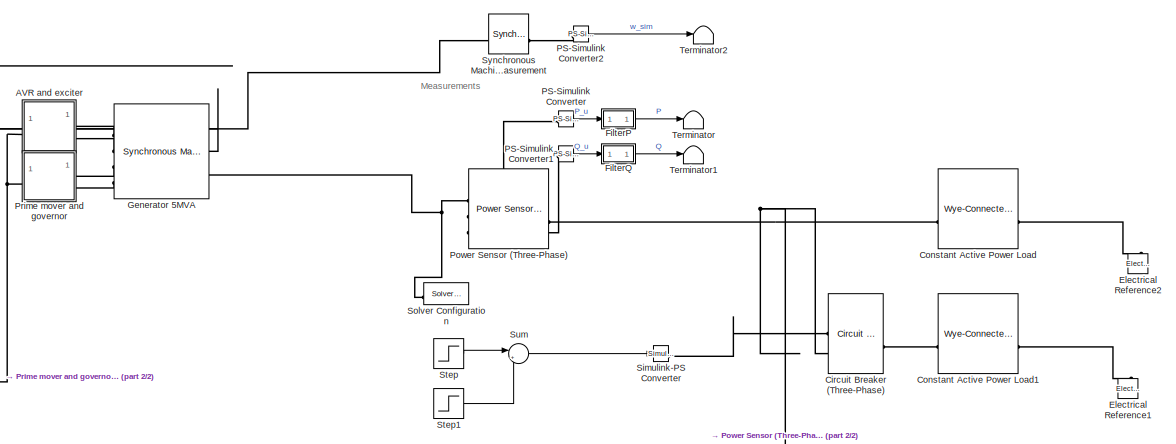
[diagram: root canvas - part 1/2, full width, top band]
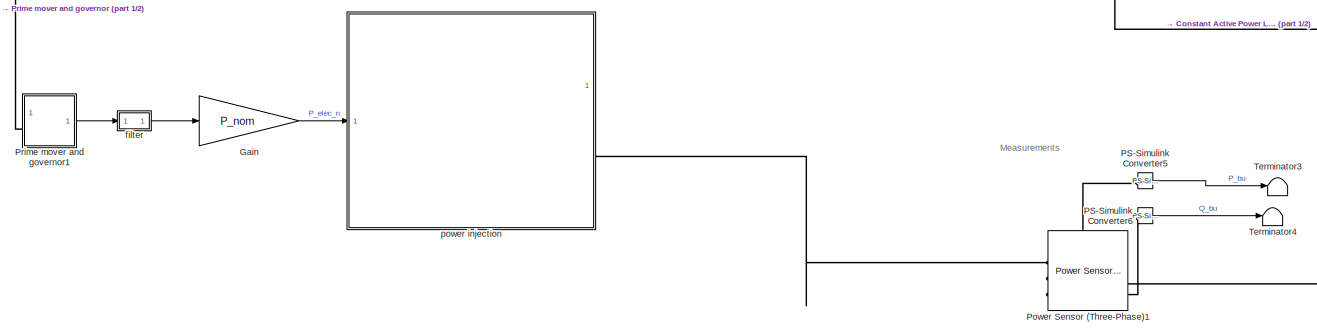
[diagram: root canvas - part 2/2, full width, bottom band]
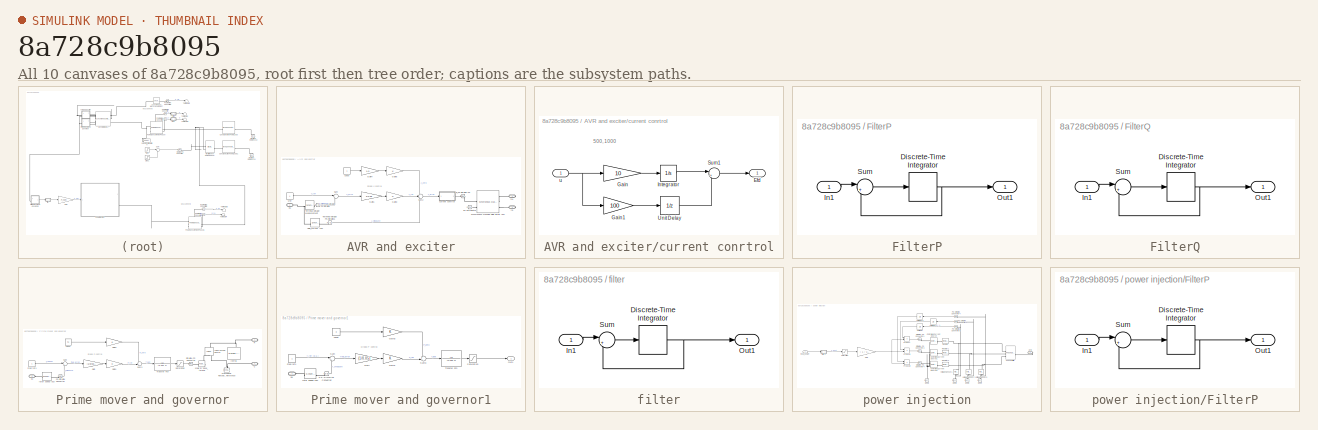
[diagram: thumbnail index - all 10 canvases of the model, root first then tree order]
MODEL slx_8a728c9b8095
KIND model
CONFIG AbsTol = auto
CONFIG EnableMultiTasking = off
CONFIG FixedStep = auto
CONFIG MaxStep = auto
CONFIG MinStep = auto
CONFIG RelTol = 1e-3
CONFIG SampleTimeConstraint = Unconstrained
CONFIG SolverName = VariableStepAuto
CONFIG StartTime = 0.1
CONFIG StopTime = 45
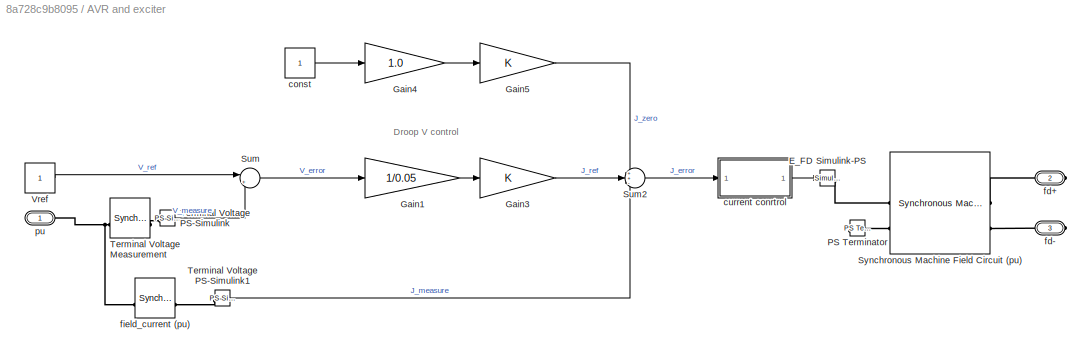
BLOCK [SubSystem] AVR and exciter
  NameLocation = top
BLOCK [Reference] AVR and exciter/E_FD Simulink-PS   REF=nesl_utility/Simulink-PS
Converter
  SourceBlock = nesl_utility/Simulink-PS\nConverter
  SourceType = Simulink-PS\nConverter
BLOCK [Gain] AVR and exciter/Gain1
  Gain = 1/0.05
BLOCK [Gain] AVR and exciter/Gain3
BLOCK [Gain] AVR and exciter/Gain4
  Gain = 1.0
BLOCK [Gain] AVR and exciter/Gain5
BLOCK [Reference] AVR and exciter/PS Terminator  REF=fl_lib/Physical Signals/Sinks/PS Terminator
  NameLocation = top
  SourceBlock = fl_lib/Physical Signals/Sinks/PS Terminator
  SourceType = PS Terminator
BLOCK [Sum] AVR and exciter/Sum
  Inputs = |+-
BLOCK [Sum] AVR and exciter/Sum2
  Inputs = ++-
BLOCK [Reference] AVR and exciter/Synchronous Machine Field Circuit (pu)  REF=ee_lib/Electromechanical/Synchronous/Synchronous Machine
Field Circuit
  SourceBlock = ee_lib/Electromechanical/Synchronous/Synchronous Machine\nField Circuit
  SourceType = Synchronous Machine\nField Circuit
BLOCK [Reference] AVR and exciter/Terminal Voltage Measurement  REF=ee_lib/Electromechanical/Synchronous/Synchronous Machine
Measurement
  SourceBlock = ee_lib/Electromechanical/Synchronous/Synchronous Machine\nMeasurement
  SourceType = Synchronous Machine\nMeasurement
BLOCK [Reference] AVR and exciter/Terminal Voltage PS-Simulink  REF=nesl_utility/PS-Simulink
Converter
  SourceBlock = nesl_utility/PS-Simulink\nConverter
  SourceType = PS-Simulink\nConverter
BLOCK [Reference] AVR and exciter/Terminal Voltage PS-Simulink1  REF=nesl_utility/PS-Simulink
Converter
  SourceBlock = nesl_utility/PS-Simulink\nConverter
  SourceType = PS-Simulink\nConverter
BLOCK [Constant] AVR and exciter/Vref
  NameLocation = top
BLOCK [Constant] AVR and exciter/const
  NameLocation = top
BLOCK [SubSystem] AVR and exciter/current conrtrol
BLOCK [Outport] AVR and exciter/current conrtrol/Efd
BLOCK [Gain] AVR and exciter/current conrtrol/Gain
  Gain = 10
BLOCK [Gain] AVR and exciter/current conrtrol/Gain1
  Gain = 100
BLOCK [Integrator] AVR and exciter/current conrtrol/Integrator
BLOCK [Sum] AVR and exciter/current conrtrol/Sum1
  Inputs = |++
BLOCK [UnitDelay] AVR and exciter/current conrtrol/Unit Delay
  HasFrameUpgradeWarning = on
  InitialCondition = 1
  SampleTime = -1
BLOCK [Inport] AVR and exciter/current conrtrol/u
BLOCK [PMIOPort] AVR and exciter/fd+
  Port = 2
  Side = Right
BLOCK [PMIOPort] AVR and exciter/fd-
  Port = 3
  Side = Right
BLOCK [Reference] AVR and exciter/field_current (pu)  REF=ee_lib/Electromechanical/Synchronous/Synchronous Machine
Measurement
  SourceBlock = ee_lib/Electromechanical/Synchronous/Synchronous Machine\nMeasurement
  SourceType = Synchronous Machine\nMeasurement
BLOCK [PMIOPort] AVR and exciter/pu
  Side = Left
BLOCK [Reference] Circuit Breaker (Three-Phase)  REF=ee_lib/Switches & Breakers/Circuit Breaker
(Three-Phase)
  SourceBlock = ee_lib/Switches & Breakers/Circuit Breaker\n(Three-Phase)
  SourceType = Circuit Breaker\n(Three-Phase)
BLOCK [Reference] Constant Active Power Load  REF=ee_lib/Passive/RLC Assemblies/Wye-Connected Load
  SourceBlock = ee_lib/Passive/RLC Assemblies/Wye-Connected Load
  SourceType = Wye-Connected Load
BLOCK [Reference] Constant Active Power Load1  REF=ee_lib/Passive/RLC Assemblies/Wye-Connected Load
  SourceBlock = ee_lib/Passive/RLC Assemblies/Wye-Connected Load
  SourceType = Wye-Connected Load
BLOCK [Reference] Electrical Reference1  REF=fl_lib/Electrical/Electrical Elements/Electrical Reference
  NameLocation = right
  SourceBlock = fl_lib/Electrical/Electrical Elements/Electrical Reference
  SourceType = Electrical Reference
BLOCK [Reference] Electrical Reference2  REF=fl_lib/Electrical/Electrical Elements/Electrical Reference
  NameLocation = right
  SourceBlock = fl_lib/Electrical/Electrical Elements/Electrical Reference
  SourceType = Electrical Reference
BLOCK [SubSystem] FilterP
BLOCK [DiscreteIntegrator] FilterP/Discrete-Time Integrator
  ICPrevOutput = DiscIntNeverNeededParam
  ICPrevScaledInput = DiscIntNeverNeededParam
  InitialConditionSetting = Auto
  SampleTime = -1
  gainval = 20
BLOCK [Inport] FilterP/In1
BLOCK [Outport] FilterP/Out1
BLOCK [Sum] FilterP/Sum
  Inputs = |+-
BLOCK [SubSystem] FilterQ
BLOCK [DiscreteIntegrator] FilterQ/Discrete-Time Integrator
  ICPrevOutput = DiscIntNeverNeededParam
  ICPrevScaledInput = DiscIntNeverNeededParam
  InitialConditionSetting = Auto
  SampleTime = -1
  gainval = 20
BLOCK [Inport] FilterQ/In1
BLOCK [Outport] FilterQ/Out1
BLOCK [Sum] FilterQ/Sum
  Inputs = |+-
BLOCK [Gain] Gain
  Gain = P_nom
BLOCK [Reference] Generator 5MVA  REF=ee_lib/Electromechanical/Synchronous/Synchronous Machine
Salient Pole
  SourceBlock = ee_lib/Electromechanical/Synchronous/Synchronous Machine\nSalient Pole
  SourceType = Synchronous Machine\nSalient Pole
BLOCK [Reference] PS-Simulink Converter  REF=nesl_utility/PS-Simulink
Converter
  SourceBlock = nesl_utility/PS-Simulink\nConverter
  SourceType = PS-Simulink\nConverter
BLOCK [Reference] PS-Simulink Converter1  REF=nesl_utility/PS-Simulink
Converter
  SourceBlock = nesl_utility/PS-Simulink\nConverter
  SourceType = PS-Simulink\nConverter
BLOCK [Reference] PS-Simulink Converter2  REF=nesl_utility/PS-Simulink
Converter
  SourceBlock = nesl_utility/PS-Simulink\nConverter
  SourceType = PS-Simulink\nConverter
BLOCK [Reference] PS-Simulink Converter5  REF=nesl_utility/PS-Simulink
Converter
  SourceBlock = nesl_utility/PS-Simulink\nConverter
  SourceType = PS-Simulink\nConverter
BLOCK [Reference] PS-Simulink Converter6  REF=nesl_utility/PS-Simulink
Converter
  SourceBlock = nesl_utility/PS-Simulink\nConverter
  SourceType = PS-Simulink\nConverter
BLOCK [Reference] Power Sensor (Three-Phase)  REF=ee_lib/Sensors &
Transducers/Power Sensor
(Three-Phase)
  SourceBlock = ee_lib/Sensors &\nTransducers/Power Sensor\n(Three-Phase)
  SourceType = Power Sensor\n(Three-Phase)
BLOCK [Reference] Power Sensor (Three-Phase)1  REF=ee_lib/Sensors &
Transducers/Power Sensor
(Three-Phase)
  SourceBlock = ee_lib/Sensors &\nTransducers/Power Sensor\n(Three-Phase)
  SourceType = Power Sensor\n(Three-Phase)
BLOCK [SubSystem] Prime mover and governor
BLOCK [PMIOPort] Prime mover and governor/C
  Port = 2
  Side = Right
BLOCK [Constant] Prime mover and governor/Freq ref1
  NameLocation = top
BLOCK [Gain] Prime mover and governor/Gain
  Gain = (1/droopP1)
BLOCK [Gain] Prime mover and governor/Gain1
BLOCK [Gain] Prime mover and governor/Gain3
BLOCK [Reference] Prime mover and governor/Ideal Torque Source  REF=fl_lib/Mechanical/Mechanical Sources/Ideal Torque Source
  NameLocation = left
  SourceBlock = fl_lib/Mechanical/Mechanical Sources/Ideal Torque Source
  SourceType = Ideal Torque Source
BLOCK [Reference] Prime mover and governor/Inertia  REF=ee_lib/Electromechanical/Mechanical/Machine
Inertia
  NameLocation = right
  SourceBlock = ee_lib/Electromechanical/Mechanical/Machine\nInertia
  SourceType = Machine\nInertia
BLOCK [Reference] Prime mover and governor/Mechanical Rotational Reference  REF=fl_lib/Mechanical/Rotational Elements/Mechanical
Rotational Reference
  NameLocation = right
  SourceBlock = fl_lib/Mechanical/Rotational Elements/Mechanical\nRotational Reference
  SourceType = Mechanical\nRotational Reference
BLOCK [Reference] Prime mover and governor/PS-Simulink Converter  REF=nesl_utility/PS-Simulink
Converter
  SourceBlock = nesl_utility/PS-Simulink\nConverter
  SourceType = PS-Simulink\nConverter
BLOCK [PMIOPort] Prime mover and governor/R
  Side = Right
BLOCK [Saturate] Prime mover and governor/Saturation
  LowerLimit = -1
  UpperLimit = 1
BLOCK [Reference] Prime mover and governor/Simulink-PS Converter  REF=nesl_utility/Simulink-PS
Converter
  NameLocation = top
  SourceBlock = nesl_utility/Simulink-PS\nConverter
  SourceType = Simulink-PS\nConverter
BLOCK [Sum] Prime mover and governor/Sum
  Inputs = |+-
  NameLocation = top
BLOCK [Sum] Prime mover and governor/Sum3
  Inputs = ++|
BLOCK [TransferFcn] Prime mover and governor/Transfer Fcn
  Denominator = [0.001 1]
BLOCK [Constant] Prime mover and governor/const
  NameLocation = top
  Value = 0.1
BLOCK [PMIOPort] Prime mover and governor/pu
  Port = 3
  Side = Left
BLOCK [Reference] Prime mover and governor/rotor speed (pu)  REF=ee_lib/Electromechanical/Synchronous/Synchronous Machine
Measurement
  SourceBlock = ee_lib/Electromechanical/Synchronous/Synchronous Machine\nMeasurement
  SourceType = Synchronous Machine\nMeasurement
BLOCK [Reference] Prime mover and governor/scale by base_torque  REF=fl_lib/Physical Signals/Functions/PS Gain
  SourceBlock = fl_lib/Physical Signals/Functions/PS Gain
  SourceType = PS Gain
BLOCK [SubSystem] Prime mover and governor1
BLOCK [Constant] Prime mover and governor1/Freq ref1
  NameLocation = top
BLOCK [Gain] Prime mover and governor1/Gain
  Gain = (1/0.05)
BLOCK [Gain] Prime mover and governor1/Gain1
BLOCK [Gain] Prime mover and governor1/Gain3
BLOCK [Outport] Prime mover and governor1/Out1
BLOCK [Reference] Prime mover and governor1/PS-Simulink Converter  REF=nesl_utility/PS-Simulink
Converter
  SourceBlock = nesl_utility/PS-Simulink\nConverter
  SourceType = PS-Simulink\nConverter
BLOCK [Saturate] Prime mover and governor1/Saturation
  LowerLimit = -1
  UpperLimit = 1
BLOCK [Sum] Prime mover and governor1/Sum
  Inputs = |+-
  NameLocation = top
BLOCK [Sum] Prime mover and governor1/Sum3
  Inputs = ++|
BLOCK [TransferFcn] Prime mover and governor1/Transfer Fcn
  Denominator = [0.001 1]
BLOCK [Constant] Prime mover and governor1/const
  NameLocation = top
  Value = 0
BLOCK [PMIOPort] Prime mover and governor1/pu
  Side = Left
BLOCK [Reference] Prime mover and governor1/rotor speed (pu)  REF=ee_lib/Electromechanical/Synchronous/Synchronous Machine
Measurement
  SourceBlock = ee_lib/Electromechanical/Synchronous/Synchronous Machine\nMeasurement
  SourceType = Synchronous Machine\nMeasurement
BLOCK [Reference] Simulink-PS Converter  REF=nesl_utility/Simulink-PS
Converter
  SourceBlock = nesl_utility/Simulink-PS\nConverter
  SourceType = Simulink-PS\nConverter
BLOCK [Reference] Solver Configuration  REF=nesl_utility/Solver
Configuration
  SourceBlock = nesl_utility/Solver\nConfiguration
  SourceType = Solver\nConfiguration
BLOCK [Step] Step
  After = 0
  Before = 1
  SampleTime = 0
  Time = 15
BLOCK [Step] Step1
  SampleTime = 0
  Time = 30
BLOCK [Sum] Sum
  Inputs = |++
BLOCK [Reference] Synchronous Machine Measurement  REF=ee_lib/Electromechanical/Synchronous/Synchronous Machine
Measurement
  SourceBlock = ee_lib/Electromechanical/Synchronous/Synchronous Machine\nMeasurement
  SourceType = Synchronous Machine\nMeasurement
BLOCK [Terminator] Terminator
BLOCK [Terminator] Terminator1
BLOCK [Terminator] Terminator2
BLOCK [Terminator] Terminator3
BLOCK [Terminator] Terminator4
BLOCK [SubSystem] filter
BLOCK [DiscreteIntegrator] filter/Discrete-Time Integrator
  ICPrevOutput = DiscIntNeverNeededParam
  ICPrevScaledInput = DiscIntNeverNeededParam
  InitialConditionSetting = Auto
  SampleTime = -1
  gainval = 1
BLOCK [Inport] filter/In1
BLOCK [Outport] filter/Out1
BLOCK [Sum] filter/Sum
  Inputs = |+-
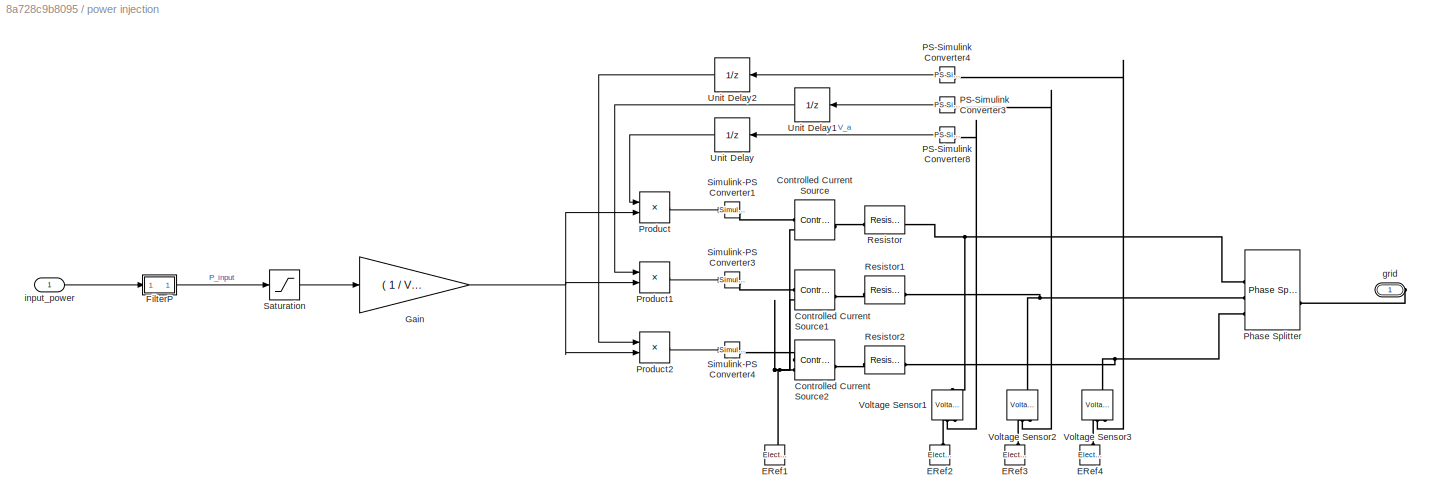
BLOCK [SubSystem] power injection
BLOCK [Reference] power injection/Controlled Current Source  REF=fl_lib/Electrical/Electrical Sources/Controlled Current
Source
  SourceBlock = fl_lib/Electrical/Electrical Sources/Controlled Current\nSource
  SourceType = Controlled Current\nSource
BLOCK [Reference] power injection/Controlled Current Source1  REF=fl_lib/Electrical/Electrical Sources/Controlled Current
Source
  SourceBlock = fl_lib/Electrical/Electrical Sources/Controlled Current\nSource
  SourceType = Controlled Current\nSource
BLOCK [Reference] power injection/Controlled Current Source2  REF=fl_lib/Electrical/Electrical Sources/Controlled Current
Source
  SourceBlock = fl_lib/Electrical/Electrical Sources/Controlled Current\nSource
  SourceType = Controlled Current\nSource
BLOCK [Reference] power injection/ERef1  REF=fl_lib/Electrical/Electrical Elements/Electrical Reference
  NameLocation = right
  SourceBlock = fl_lib/Electrical/Electrical Elements/Electrical Reference
  SourceType = Electrical Reference
BLOCK [Reference] power injection/ERef2  REF=fl_lib/Electrical/Electrical Elements/Electrical Reference
  NameLocation = right
  SourceBlock = fl_lib/Electrical/Electrical Elements/Electrical Reference
  SourceType = Electrical Reference
BLOCK [Reference] power injection/ERef3  REF=fl_lib/Electrical/Electrical Elements/Electrical Reference
  NameLocation = right
  SourceBlock = fl_lib/Electrical/Electrical Elements/Electrical Reference
  SourceType = Electrical Reference
BLOCK [Reference] power injection/ERef4  REF=fl_lib/Electrical/Electrical Elements/Electrical Reference
  NameLocation = right
  SourceBlock = fl_lib/Electrical/Electrical Elements/Electrical Reference
  SourceType = Electrical Reference
BLOCK [SubSystem] power injection/FilterP
BLOCK [DiscreteIntegrator] power injection/FilterP/Discrete-Time Integrator
  ICPrevOutput = DiscIntNeverNeededParam
  ICPrevScaledInput = DiscIntNeverNeededParam
  InitialConditionSetting = Auto
  SampleTime = -1
  gainval = 20
BLOCK [Inport] power injection/FilterP/In1
BLOCK [Outport] power injection/FilterP/Out1
BLOCK [Sum] power injection/FilterP/Sum
  Inputs = |+-
BLOCK [Gain] power injection/Gain
  Gain = ( 1 / V_ref ) ^ 2
BLOCK [Reference] power injection/PS-Simulink Converter3  REF=nesl_utility/PS-Simulink
Converter
  NameLocation = top
  SourceBlock = nesl_utility/PS-Simulink\nConverter
  SourceType = PS-Simulink\nConverter
BLOCK [Reference] power injection/PS-Simulink Converter4  REF=nesl_utility/PS-Simulink
Converter
  NameLocation = top
  SourceBlock = nesl_utility/PS-Simulink\nConverter
  SourceType = PS-Simulink\nConverter
BLOCK [Reference] power injection/PS-Simulink Converter8  REF=nesl_utility/PS-Simulink
Converter
  NameLocation = top
  SourceBlock = nesl_utility/PS-Simulink\nConverter
  SourceType = PS-Simulink\nConverter
BLOCK [Reference] power injection/Phase Splitter  REF=ee_lib/Connectors &
References/Phase Splitter
  SourceBlock = ee_lib/Connectors &\nReferences/Phase Splitter
  SourceType = Phase Splitter
BLOCK [Product] power injection/Product
BLOCK [Product] power injection/Product1
BLOCK [Product] power injection/Product2
BLOCK [Reference] power injection/Resistor  REF=fl_lib/Electrical/Electrical Elements/Resistor
  SourceBlock = fl_lib/Electrical/Electrical Elements/Resistor
  SourceType = Resistor
BLOCK [Reference] power injection/Resistor1  REF=fl_lib/Electrical/Electrical Elements/Resistor
  SourceBlock = fl_lib/Electrical/Electrical Elements/Resistor
  SourceType = Resistor
BLOCK [Reference] power injection/Resistor2  REF=fl_lib/Electrical/Electrical Elements/Resistor
  SourceBlock = fl_lib/Electrical/Electrical Elements/Resistor
  SourceType = Resistor
BLOCK [Saturate] power injection/Saturation
  LowerLimit = -P_nom
  UpperLimit = P_nom
BLOCK [Reference] power injection/Simulink-PS Converter1  REF=nesl_utility/Simulink-PS
Converter
  SourceBlock = nesl_utility/Simulink-PS\nConverter
  SourceType = Simulink-PS\nConverter
BLOCK [Reference] power injection/Simulink-PS Converter3  REF=nesl_utility/Simulink-PS
Converter
  SourceBlock = nesl_utility/Simulink-PS\nConverter
  SourceType = Simulink-PS\nConverter
BLOCK [Reference] power injection/Simulink-PS Converter4  REF=nesl_utility/Simulink-PS
Converter
  SourceBlock = nesl_utility/Simulink-PS\nConverter
  SourceType = Simulink-PS\nConverter
BLOCK [UnitDelay] power injection/Unit Delay
  HasFrameUpgradeWarning = on
  SampleTime = -1
BLOCK [UnitDelay] power injection/Unit Delay1
  HasFrameUpgradeWarning = on
  SampleTime = -1
BLOCK [UnitDelay] power injection/Unit Delay2
  HasFrameUpgradeWarning = on
  SampleTime = -1
BLOCK [Reference] power injection/Voltage Sensor1  REF=fl_lib/Electrical/Electrical Sensors/Voltage Sensor
  NameLocation = right
  SourceBlock = fl_lib/Electrical/Electrical Sensors/Voltage Sensor
  SourceType = Voltage Sensor
BLOCK [Reference] power injection/Voltage Sensor2  REF=fl_lib/Electrical/Electrical Sensors/Voltage Sensor
  NameLocation = right
  SourceBlock = fl_lib/Electrical/Electrical Sensors/Voltage Sensor
  SourceType = Voltage Sensor
BLOCK [Reference] power injection/Voltage Sensor3  REF=fl_lib/Electrical/Electrical Sensors/Voltage Sensor
  NameLocation = right
  SourceBlock = fl_lib/Electrical/Electrical Sensors/Voltage Sensor
  SourceType = Voltage Sensor
BLOCK [PMIOPort] power injection/grid
  Side = Right
BLOCK [Inport] power injection/input_power
ANNOTATION (root): Measurements
ANNOTATION AVR and exciter: Droop V control
ANNOTATION AVR and exciter/current conrtrol: 500, 1000
ANNOTATION Prime mover and governor: Droop P control
ANNOTATION Prime mover and governor1: Droop P control
LINE AVR and exciter/Gain1:1 -> AVR and exciter/Gain3:1
LINE AVR and exciter/Gain3:1 -> AVR and exciter/Sum2:2
LINE AVR and exciter/Gain4:1 -> AVR and exciter/Gain5:1
LINE AVR and exciter/Gain5:1 -> AVR and exciter/Sum2:1
LINE AVR and exciter/Sum2:1 -> AVR and exciter/current conrtrol:1
LINE AVR and exciter/Sum:1 -> AVR and exciter/Gain1:1
LINE AVR and exciter/Terminal Voltage PS-Simulink1:1 -> AVR and exciter/Sum2:3
LINE AVR and exciter/Terminal Voltage PS-Simulink:1 -> AVR and exciter/Sum:2
LINE AVR and exciter/Vref:1 -> AVR and exciter/Sum:1
LINE AVR and exciter/const:1 -> AVR and exciter/Gain4:1
LINE AVR and exciter/current conrtrol/Gain1:1 -> AVR and exciter/current conrtrol/Unit Delay:1
LINE AVR and exciter/current conrtrol/Gain:1 -> AVR and exciter/current conrtrol/Integrator:1
LINE AVR and exciter/current conrtrol/Integrator:1 -> AVR and exciter/current conrtrol/Sum1:1
LINE AVR and exciter/current conrtrol/Sum1:1 -> AVR and exciter/current conrtrol/Efd:1
LINE AVR and exciter/current conrtrol/Unit Delay:1 -> AVR and exciter/current conrtrol/Sum1:2
NET AVR and exciter/current conrtrol/u:1 -> AVR and exciter/current conrtrol/Gain1:1, AVR and exciter/current conrtrol/Gain:1
LINE AVR and exciter/current conrtrol:1 -> AVR and exciter/E_FD Simulink-PS :1
NET FilterP/Discrete-Time Integrator:1 -> FilterP/Out1:1, FilterP/Sum:2
LINE FilterP/In1:1 -> FilterP/Sum:1
LINE FilterP/Sum:1 -> FilterP/Discrete-Time Integrator:1
LINE FilterP:1 -> Terminator:1
NET FilterQ/Discrete-Time Integrator:1 -> FilterQ/Out1:1, FilterQ/Sum:2
LINE FilterQ/In1:1 -> FilterQ/Sum:1
LINE FilterQ/Sum:1 -> FilterQ/Discrete-Time Integrator:1
LINE FilterQ:1 -> Terminator1:1
LINE Gain:1 -> power injection:1
LINE PS-Simulink Converter1:1 -> FilterQ:1
LINE PS-Simulink Converter2:1 -> Terminator2:1
LINE PS-Simulink Converter5:1 -> Terminator3:1
LINE PS-Simulink Converter6:1 -> Terminator4:1
LINE PS-Simulink Converter:1 -> FilterP:1
LINE Prime mover and governor/Freq ref1:1 -> Prime mover and governor/Sum:1
LINE Prime mover and governor/Gain1:1 -> Prime mover and governor/Sum3:2
LINE Prime mover and governor/Gain3:1 -> Prime mover and governor/Sum3:1
LINE Prime mover and governor/Gain:1 -> Prime mover and governor/Gain1:1
LINE Prime mover and governor/PS-Simulink Converter:1 -> Prime mover and governor/Sum:2
LINE Prime mover and governor/Saturation:1 -> Prime mover and governor/Simulink-PS Converter:1
LINE Prime mover and governor/Sum3:1 -> Prime mover and governor/Transfer Fcn:1
LINE Prime mover and governor/Sum:1 -> Prime mover and governor/Gain:1
LINE Prime mover and governor/Transfer Fcn:1 -> Prime mover and governor/Saturation:1
LINE Prime mover and governor/const:1 -> Prime mover and governor/Gain3:1
LINE Prime mover and governor1/Freq ref1:1 -> Prime mover and governor1/Sum:1
LINE Prime mover and governor1/Gain1:1 -> Prime mover and governor1/Sum3:2
LINE Prime mover and governor1/Gain3:1 -> Prime mover and governor1/Sum3:1
LINE Prime mover and governor1/Gain:1 -> Prime mover and governor1/Gain1:1
LINE Prime mover and governor1/PS-Simulink Converter:1 -> Prime mover and governor1/Sum:2
LINE Prime mover and governor1/Saturation:1 -> Prime mover and governor1/Out1:1
LINE Prime mover and governor1/Sum3:1 -> Prime mover and governor1/Transfer Fcn:1
LINE Prime mover and governor1/Sum:1 -> Prime mover and governor1/Gain:1
LINE Prime mover and governor1/Transfer Fcn:1 -> Prime mover and governor1/Saturation:1
LINE Prime mover and governor1/const:1 -> Prime mover and governor1/Gain3:1
LINE Prime mover and governor1:1 -> filter:1
LINE Step1:1 -> Sum:2
LINE Step:1 -> Sum:1
LINE Sum:1 -> Simulink-PS Converter:1
NET filter/Discrete-Time Integrator:1 -> filter/Out1:1, filter/Sum:2
LINE filter/In1:1 -> filter/Sum:1
LINE filter/Sum:1 -> filter/Discrete-Time Integrator:1
LINE filter:1 -> Gain:1
NET power injection/FilterP/Discrete-Time Integrator:1 -> power injection/FilterP/Out1:1, power injection/FilterP/Sum:2
LINE power injection/FilterP/In1:1 -> power injection/FilterP/Sum:1
LINE power injection/FilterP/Sum:1 -> power injection/FilterP/Discrete-Time Integrator:1
LINE power injection/FilterP:1 -> power injection/Saturation:1
NET power injection/Gain:1 -> power injection/Product1:2, power injection/Product2:2, power injection/Product:2
LINE power injection/PS-Simulink Converter3:1 -> power injection/Unit Delay1:1
LINE power injection/PS-Simulink Converter4:1 -> power injection/Unit Delay2:1
LINE power injection/PS-Simulink Converter8:1 -> power injection/Unit Delay:1
LINE power injection/Product1:1 -> power injection/Simulink-PS Converter3:1
LINE power injection/Product2:1 -> power injection/Simulink-PS Converter4:1
LINE power injection/Product:1 -> power injection/Simulink-PS Converter1:1
LINE power injection/Saturation:1 -> power injection/Gain:1
LINE power injection/Unit Delay1:1 -> power injection/Product1:1
LINE power injection/Unit Delay2:1 -> power injection/Product2:1
LINE power injection/Unit Delay:1 -> power injection/Product:1
LINE power injection/input_power:1 -> power injection/FilterP:1
PLINE AVR and exciter/E_FD Simulink-PS :RConn1 -- AVR and exciter/Synchronous Machine Field Circuit (pu):LConn1
PLINE AVR and exciter/PS Terminator:LConn1 -- AVR and exciter/Synchronous Machine Field Circuit (pu):LConn2
PLINE AVR and exciter/Synchronous Machine Field Circuit (pu):RConn1 -- AVR and exciter/fd+:RConn1
PLINE AVR and exciter/Synchronous Machine Field Circuit (pu):RConn2 -- AVR and exciter/fd-:RConn1
PNET net1: AVR and exciter/Terminal Voltage Measurement:LConn1 -- AVR and exciter/field_current (pu):LConn1 -- AVR and exciter/pu:RConn1
PLINE AVR and exciter/Terminal Voltage Measurement:RConn1 -- AVR and exciter/Terminal Voltage PS-Simulink:LConn1
PLINE AVR and exciter/Terminal Voltage PS-Simulink1:LConn1 -- AVR and exciter/field_current (pu):RConn1
PNET net2: AVR and exciter:LConn1 -- Generator 5MVA:RConn1 -- Prime mover and governor1:LConn1 -- Prime mover and governor:LConn1 -- Synchronous Machine Measurement:LConn1
PLINE AVR and exciter:RConn1 -- Generator 5MVA:LConn1
PLINE AVR and exciter:RConn2 -- Generator 5MVA:LConn2
PLINE Circuit Breaker (Three-Phase):LConn1 -- Simulink-PS Converter:RConn1
PNET net3: Circuit Breaker (Three-Phase):LConn2 -- Constant Active Power Load:LConn1 -- Power Sensor (Three-Phase)1:RConn1 -- Power Sensor (Three-Phase):RConn1
PLINE Circuit Breaker (Three-Phase):RConn1 -- Constant Active Power Load1:LConn1
PLINE Constant Active Power Load1:RConn1 -- Electrical Reference1:LConn1
PLINE Constant Active Power Load:RConn1 -- Electrical Reference2:LConn1
PLINE Generator 5MVA:LConn3 -- Prime mover and governor:RConn1
PLINE Generator 5MVA:LConn4 -- Prime mover and governor:RConn2
PNET net4: Generator 5MVA:RConn2 -- Power Sensor (Three-Phase):LConn1 -- Solver Configuration:RConn1
PLINE PS-Simulink Converter1:LConn1 -- Power Sensor (Three-Phase):LConn3
PLINE PS-Simulink Converter2:LConn1 -- Synchronous Machine Measurement:RConn1
PLINE PS-Simulink Converter5:LConn1 -- Power Sensor (Three-Phase)1:LConn2
PLINE PS-Simulink Converter6:LConn1 -- Power Sensor (Three-Phase)1:LConn3
PLINE PS-Simulink Converter:LConn1 -- Power Sensor (Three-Phase):LConn2
PLINE Power Sensor (Three-Phase)1:LConn1 -- power injection:RConn1
PNET net5: Prime mover and governor/C:RConn1 -- Prime mover and governor/Ideal Torque Source:RConn2 -- Prime mover and governor/Mechanical Rotational Reference:LConn1
PNET net6: Prime mover and governor/Ideal Torque Source:LConn1 -- Prime mover and governor/Inertia:LConn1 -- Prime mover and governor/R:RConn1
PLINE Prime mover and governor/Ideal Torque Source:RConn1 -- Prime mover and governor/scale by base_torque:RConn1
PLINE Prime mover and governor/PS-Simulink Converter:LConn1 -- Prime mover and governor/rotor speed (pu):RConn1
PLINE Prime mover and governor/Simulink-PS Converter:RConn1 -- Prime mover and governor/scale by base_torque:LConn1
PLINE Prime mover and governor/pu:RConn1 -- Prime mover and governor/rotor speed (pu):LConn1
PLINE Prime mover and governor1/PS-Simulink Converter:LConn1 -- Prime mover and governor1/rotor speed (pu):RConn1
PLINE Prime mover and governor1/pu:RConn1 -- Prime mover and governor1/rotor speed (pu):LConn1
PLINE power injection/Controlled Current Source1:LConn1 -- power injection/Resistor1:LConn1
PLINE power injection/Controlled Current Source1:RConn1 -- power injection/Simulink-PS Converter3:RConn1
PNET net7: power injection/Controlled Current Source1:RConn2 -- power injection/Controlled Current Source2:RConn2 -- power injection/Controlled Current Source:RConn2 -- power injection/ERef1:LConn1
PLINE power injection/Controlled Current Source2:LConn1 -- power injection/Resistor2:LConn1
PLINE power injection/Controlled Current Source2:RConn1 -- power injection/Simulink-PS Converter4:RConn1
PLINE power injection/Controlled Current Source:LConn1 -- power injection/Resistor:LConn1
PLINE power injection/Controlled Current Source:RConn1 -- power injection/Simulink-PS Converter1:RConn1
PLINE power injection/ERef2:LConn1 -- power injection/Voltage Sensor1:RConn2
PLINE power injection/ERef3:LConn1 -- power injection/Voltage Sensor2:RConn2
PLINE power injection/ERef4:LConn1 -- power injection/Voltage Sensor3:RConn2
PLINE power injection/PS-Simulink Converter3:LConn1 -- power injection/Voltage Sensor2:RConn1
PLINE power injection/PS-Simulink Converter4:LConn1 -- power injection/Voltage Sensor3:RConn1
PLINE power injection/PS-Simulink Converter8:LConn1 -- power injection/Voltage Sensor1:RConn1
PLINE power injection/Phase Splitter:LConn1 -- power injection/grid:RConn1
PNET net8: power injection/Phase Splitter:RConn1 -- power injection/Resistor:RConn1 -- power injection/Voltage Sensor1:LConn1
PNET net9: power injection/Phase Splitter:RConn2 -- power injection/Resistor1:RConn1 -- power injection/Voltage Sensor2:LConn1
PNET net10: power injection/Phase Splitter:RConn3 -- power injection/Resistor2:RConn1 -- power injection/Voltage Sensor3:LConn1
note: NET lines group one-source signal fan-out (src -> all destinations, sorted); 1:1 wires keep LINE; PNET lines group multi-terminal physical nets as a canonical sorted terminal list (undirected conserving connections); 2-terminal nets keep the pairwise PLINE form
